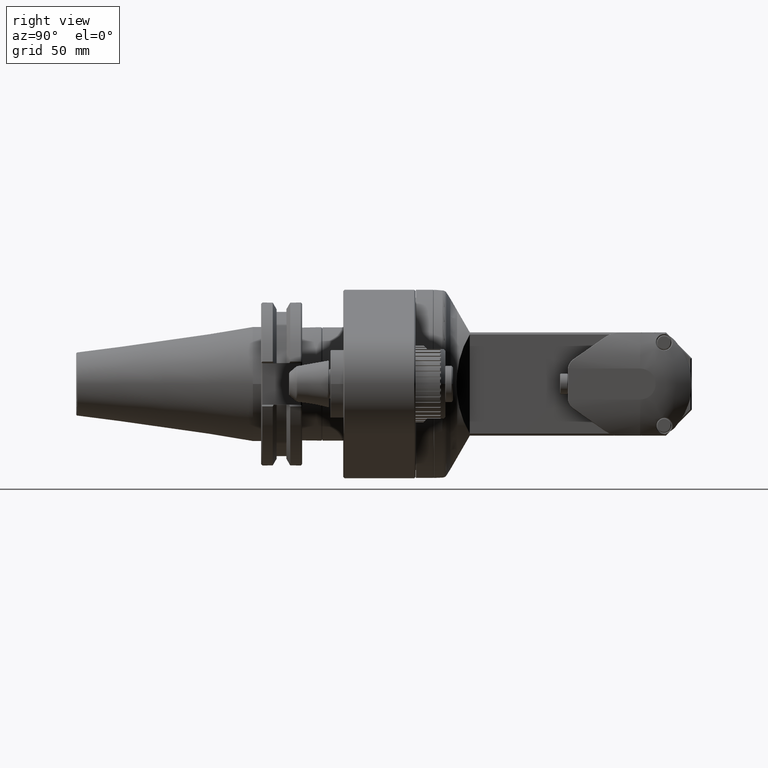
[diagram: clean part render]
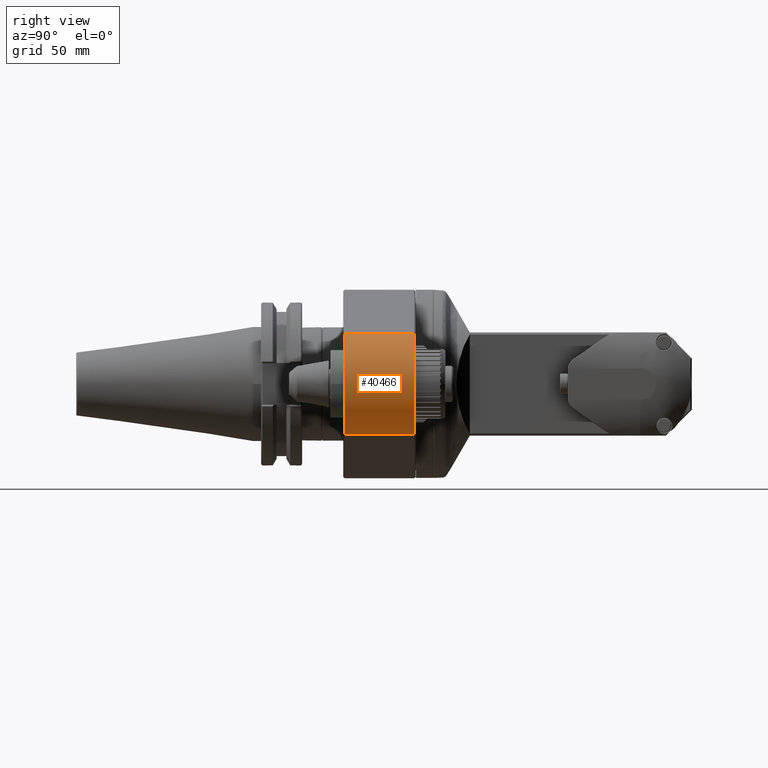
[diagram: same view with one face highlighted and labeled with its STEP entity id]
A machine part, right view. The second image highlights one B-rep face of the part: STEP entity #40466.
In plain terms, the highlighted cylindrical surface (partial cylindrical patch) has radius 20 mm, axis along (0, -1, 0).
Its self-contained STEP definition (entity closure, byte-faithful):
#752=CYLINDRICAL_SURFACE('',#43178,20.);
#1622=CIRCLE('',#43154,20.);
#1629=CIRCLE('',#43175,20.);
#3654=FACE_OUTER_BOUND('',#5938,.T.);
#5938=EDGE_LOOP('',(#35236,#35237,#35238,#35239));
#10513=LINE('',#69933,#15172);
#10514=LINE('',#69935,#15173);
#15172=VECTOR('',#52569,26.99995256432);
#15173=VECTOR('',#52572,26.99995256376);
#19007=VERTEX_POINT('',#69725);
#19008=VERTEX_POINT('',#69729);
#19032=VERTEX_POINT('',#69923);
#19033=VERTEX_POINT('',#69927);
#24496=EDGE_CURVE('',#19007,#19008,#1622,.T.);
#24531=EDGE_CURVE('',#19032,#19033,#1629,.T.);
#24534=EDGE_CURVE('',#19007,#19033,#10513,.T.);
#24535=EDGE_CURVE('',#19008,#19032,#10514,.T.);
#35236=ORIENTED_EDGE('',*,*,#24531,.F.);
#35237=ORIENTED_EDGE('',*,*,#24535,.F.);
#35238=ORIENTED_EDGE('',*,*,#24496,.F.);
#35239=ORIENTED_EDGE('',*,*,#24534,.T.);
#40466=ADVANCED_FACE('',(#3654),#752,.T.);
#43154=AXIS2_PLACEMENT_3D('',#69730,#52503,#52504);
#43175=AXIS2_PLACEMENT_3D('',#69928,#52561,#52562);
#43178=AXIS2_PLACEMENT_3D('',#69934,#52570,#52571);
#52503=DIRECTION('center_axis',(0.,1.,0.));
#52504=DIRECTION('ref_axis',(0.253846153846186,0.,0.967244607210347));
#52561=DIRECTION('center_axis',(0.,-1.,0.));
#52562=DIRECTION('ref_axis',(0.253846153846186,0.,-0.967244607210347));
#52569=DIRECTION('',(4.638694292634E-10,-1.,1.79749785428E-9));
#52570=DIRECTION('center_axis',(0.,-1.,0.));
#52571=DIRECTION('ref_axis',(0.,0.,-1.));
#52572=DIRECTION('',(4.604293437321E-10,-1.,-1.798561170231E-9));
#69725=CARTESIAN_POINT('',(70.076923436001,20.3999016095865,19.344893512437));
#69729=CARTESIAN_POINT('',(70.0769159786874,20.3999409362674,-19.3448652655485));
#69730=CARTESIAN_POINT('Origin',(65.,20.39981004904,0.));
#69923=CARTESIAN_POINT('',(70.0769234352427,-6.59990181733006,-19.3448935095475));
#69927=CARTESIAN_POINT('',(70.0769159867973,-6.59994106108519,19.344865323839));
#69928=CARTESIAN_POINT('Origin',(65.,-6.59981045011,0.));
#69933=CARTESIAN_POINT('',(70.07691700164,20.39997625709,19.34486918992));
#69934=CARTESIAN_POINT('Origin',(65.,20.9,0.));
#69935=CARTESIAN_POINT('',(70.07691700823,20.39997625681,-19.34486918847));